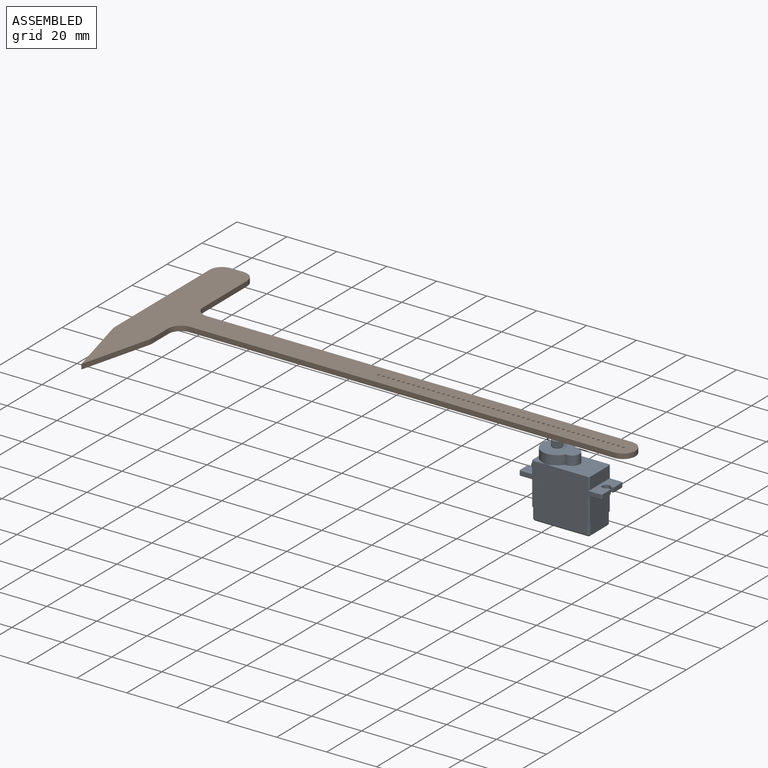
[diagram: assembled view]
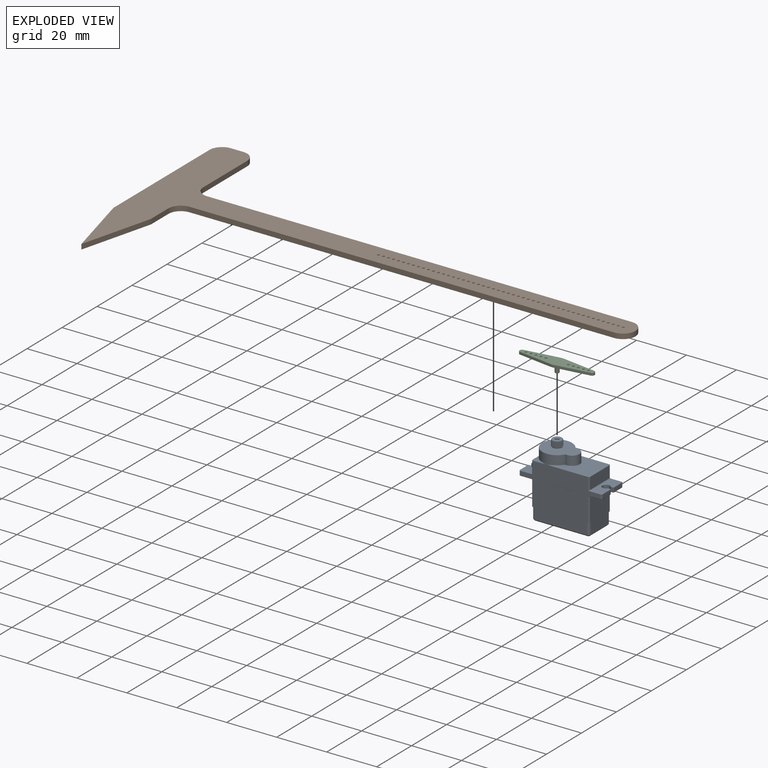
[diagram: exploded view]
GUIDED TOUR — MATED ASSEMBLY (Onshape document 581a83bee5385f105d0a3b72, AutoMate assembly 581a83bee5385f105d0a3b72_4ecf0d9252ac3c27a4bb19f4_70538246d8c54f1da4383d06_default)

This assembly has 3 components, labeled P0..P2 below (a component is one placed occurrence of a part; the same part can appear more than once), held together by 2 mates. A mate is a constraint between two components; its type names the relative motion it leaves free:
  FASTENED — locks the two components together rigidly (no relative motion),
  REVOLUTE — leaves rotation about the listed axis free (a hinge).
Axis/direction vectors are unit vectors and 'through' points are millimeter coordinates, both in the assembly's world frame.

MATES
  1. FASTENED "Fastened 1": P1 <-> P2, direction (0.000, 0.000, -1.000) through (7.87, -13.04, 30.90) mm
  2. REVOLUTE "Revolute 1": P0 <-> P2, axis (0.000, 0.000, 1.000) through (-4.63, -13.04, 26.90) mm

ASSEMBLY ORDER
  1. P0 — the base component [order verified]
  2. P2 [order verified]
  3. P1 [order verified]
Order-tag legend:
  [order verified] — this step's position reverses a verified removal order: the component was checked to insert without passing through the ones already placed.

Of the 3 components, 1 carries the full construction recipe — the FeatureScript program that regenerates the part's solid from scratch; the rest are supplied as boundary geometry only.
Each toured component is shown spotlighted twice — in the assembled view, then in the exploded view, where a leader line traces a displaced component back to its assembled socket (saturated green if recipe-attached, orange if geometry-only; every other component desaturated gray) — followed by its recipe or geometry summary and the mates that hold it.
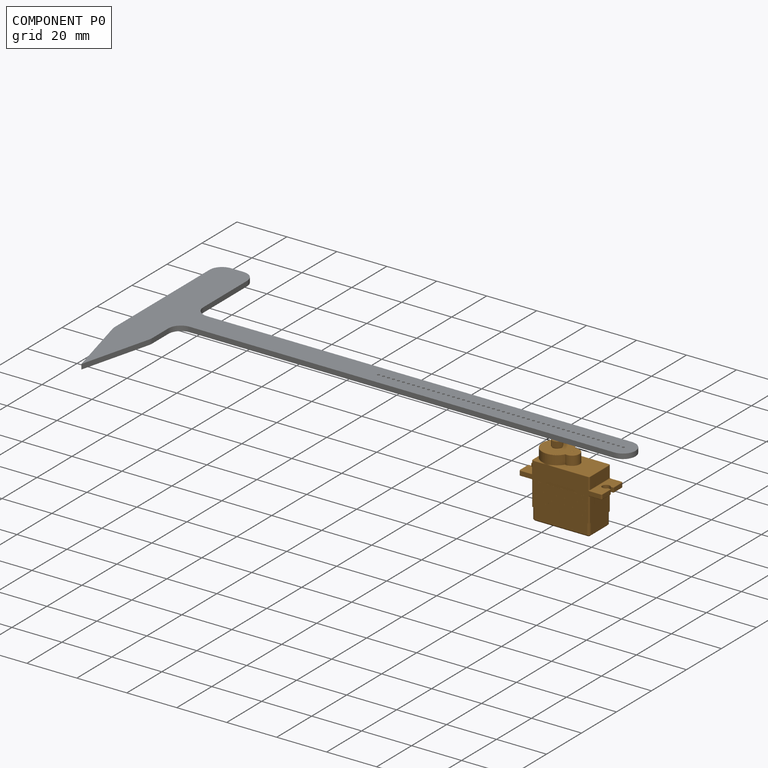
[diagram: component P0 — assembled]
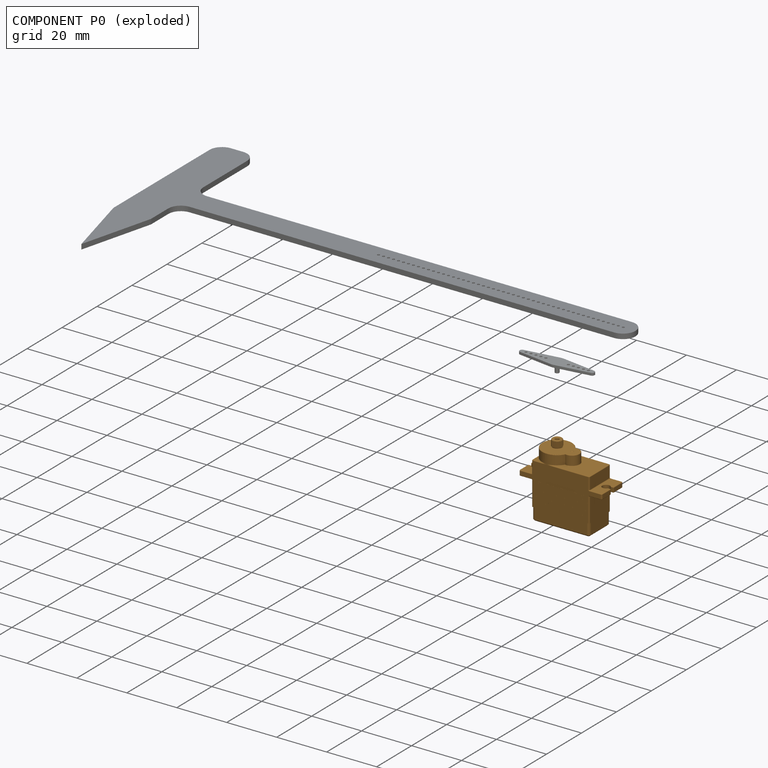
[diagram: component P0 — exploded]
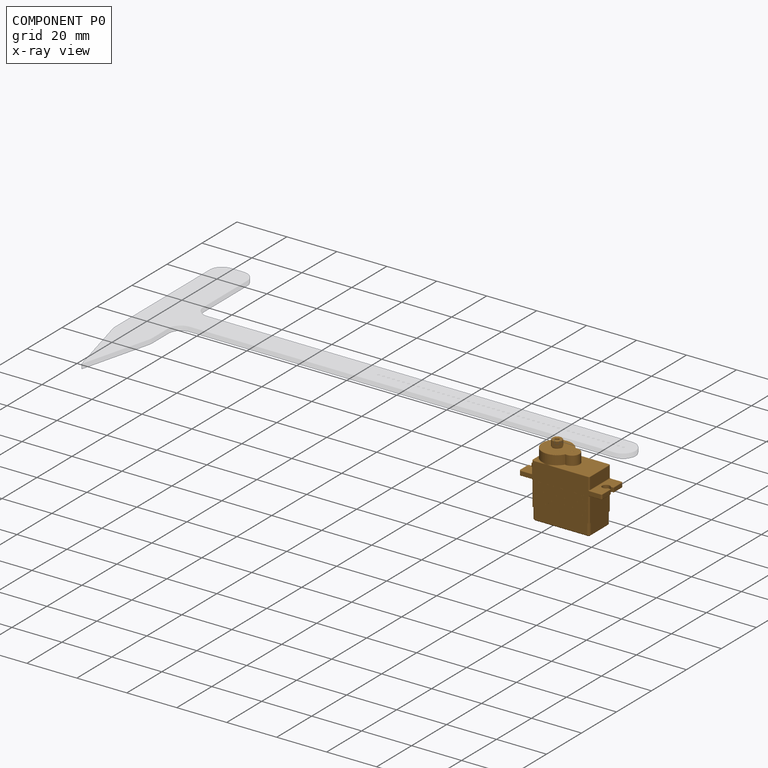
[diagram: component P0 — x-ray view]
COMPONENT P0 — geometry summary (no construction recipe available for this part):
  bounding box: 33.4 x 29.1 x 13.2 mm
  B-rep topology: 1 solid, 894 faces, 4792 edges
  volume: 6771 mm^3 (53% of its bounding box)
  symmetry: mirror-symmetric across its y mid-plane
Held by: REVOLUTE mate "Revolute 1" to P2.
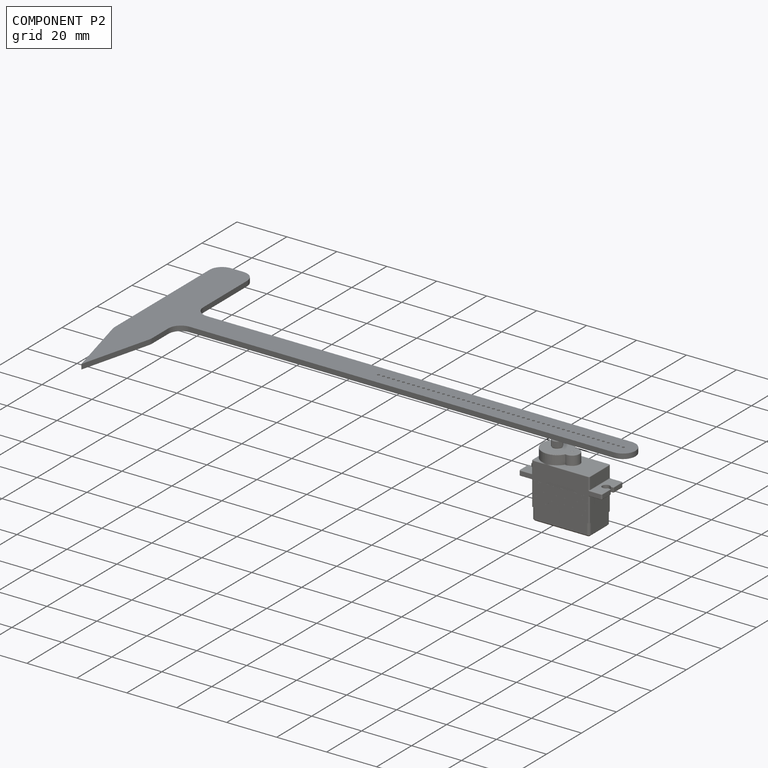
[diagram: component P2 — assembled]
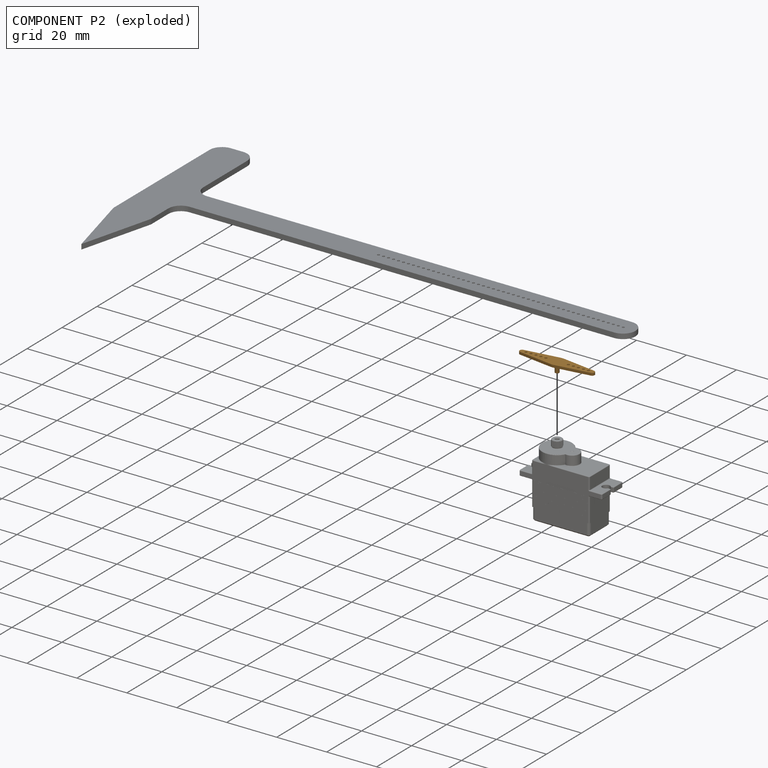
[diagram: component P2 — exploded]
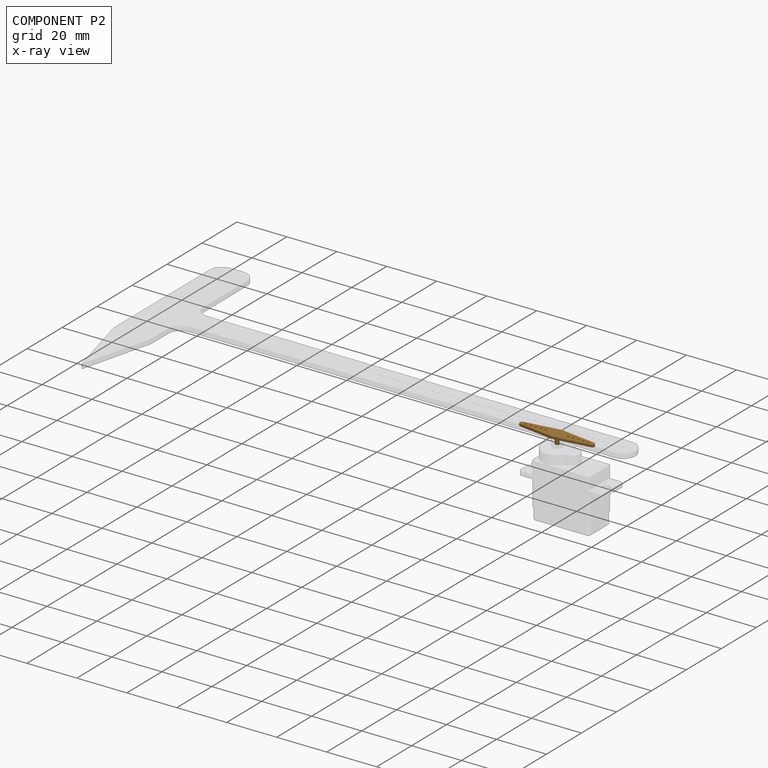
[diagram: component P2 — x-ray view]
COMPONENT P2 — geometry summary (no construction recipe available for this part):
  bounding box: 30.0 x 6.0 x 4.0 mm
  B-rep topology: 1 solid, 22 faces, 114 edges
  volume: 114 mm^3 (16% of its bounding box)
  symmetry: 2-fold rotationally symmetric about the z axis; mirror-symmetric across its x mid-plane, y mid-plane
Held by: FASTENED mate "Fastened 1" to P1; REVOLUTE mate "Revolute 1" to P0.
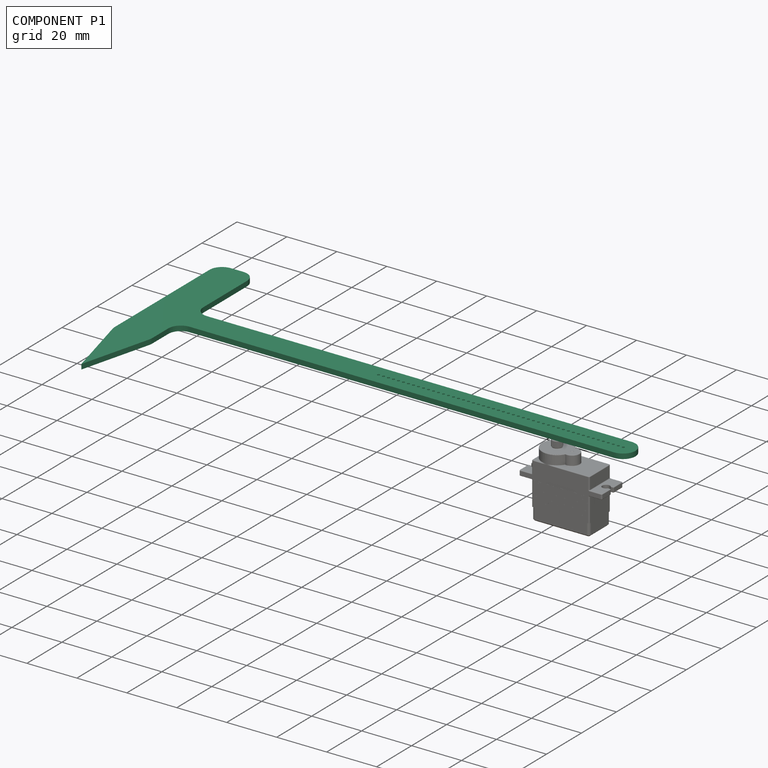
[diagram: component P1 — assembled]
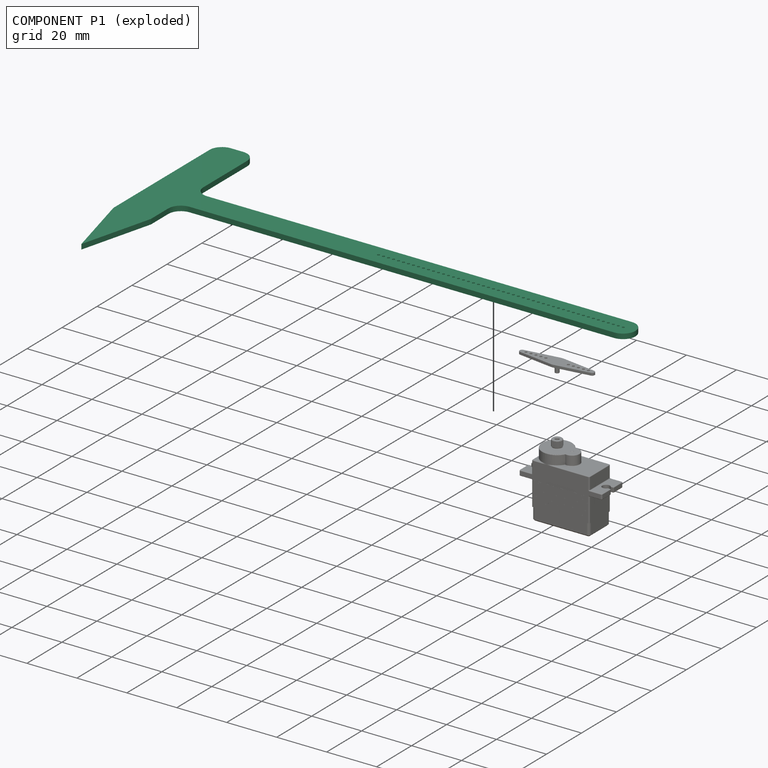
[diagram: component P1 — exploded]
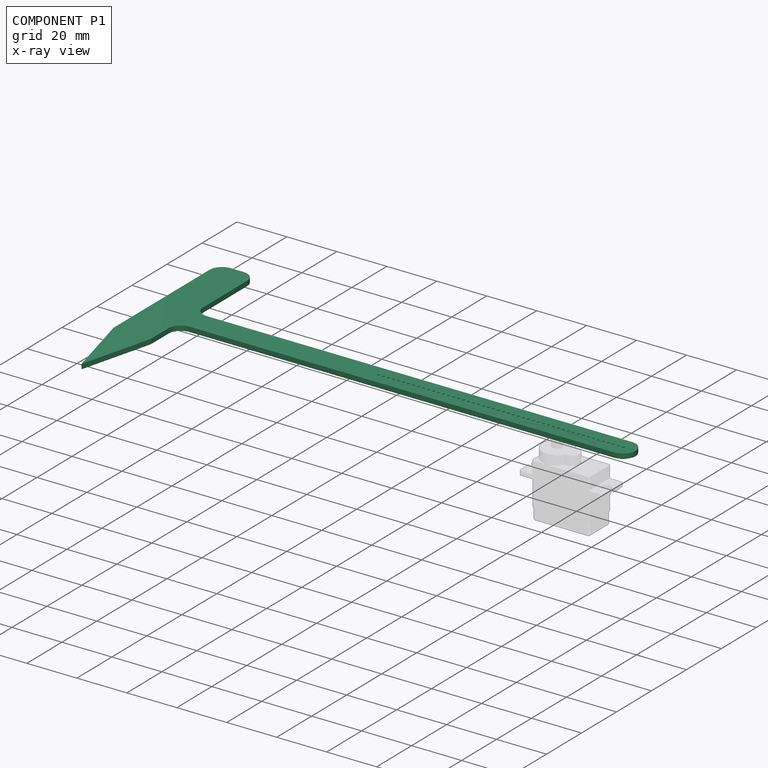
[diagram: component P1 — x-ray view]
COMPONENT P1 — recipe-attached (CADFS 00310060, mesh-verified: the recipe's output STEP matches this component's geometry to below the mesh-comparison resolution (tessellation chordal tolerance ~0.322 mm)).
Held by: FASTENED mate "Fastened 1" to P2.
Construction recipe (FeatureScript — the CAD program that rebuilds this solid; sketch coordinates are in the units given by the * unit suffixes, e.g. mm):

FeatureScript 1540;
import(path : "onshape/std/geometry.fs", version : "1540.0");
import(path : "onshape/std/common.fs", version : "1540.0");
const mm = millimeter;
const VERTEX = EntityType.VERTEX;
const EDGE = EntityType.EDGE;
const FACE = EntityType.FACE;
const BODY = EntityType.BODY;
function v(x, y){return vector(x, y);}
function OD(order){return orderDisambiguation(order);}
function OSD(set){return originalSetDisambiguation(set);}
function TD(topology){return topologyDisambiguation(topology);}
function TDD(query){return trueDependencyDisambiguation(query);}
function sQuery(a, b, c) {return sketchEntityQuery(a, b, c);}

annotation { "Feature Type Name" : "Feature", "Feature Type Description" : "" }
export const myFeature = defineFeature(function(context is Context, id is Id, definition is map)
    precondition{}
    {
        {
            var Q0;
            Q0=qCreatedBy(makeId("Right.planeOp"),FACE);
            var sketch = newSketch(context, id + "F0", { "sketchPlane" : qUnion([Q0])});
            skLineSegment(sketch, "E0.bottom", {"start": v(-101.64, 12.47) * mm, "end": v(78.36, 12.47) * mm});
            skLineSegment(sketch, "E0.top", {"start": v(-101.64, 2.47) * mm, "end": v(78.36, 2.47) * mm});
            skLineSegment(sketch, "E0.left", {"start": v(-101.64, 12.47) * mm, "end": v(-101.64, 2.47) * mm});
            skLineSegment(sketch, "E0.right", {"start": v(78.36, 12.47) * mm, "end": v(78.36, 2.47) * mm});
            skLineSegment(sketch, "E1.bottom", {"start": v(78.36, 47.47) * mm, "end": v(93.36, 47.47) * mm});
            skLineSegment(sketch, "E1.top", {"start": v(78.36, -12.53) * mm, "end": v(93.36, -12.53) * mm});
            skLineSegment(sketch, "E1.left", {"start": v(78.36, 47.47) * mm, "end": v(78.36, -12.53) * mm});
            skLineSegment(sketch, "E1.right", {"start": v(93.36, 47.47) * mm, "end": v(93.36, -12.53) * mm});
            skLineSegment(sketch, "E2", {"start": v(93.36, -12.53) * mm, "end": v(85.86, -41.57) * mm});
            skLineSegment(sketch, "E3", {"start": v(85.86, -41.57) * mm, "end": v(78.36, -12.53) * mm});
            skCircle(sketch, "E4", {"center": v(-96.78, 7.47) * mm, "radius": 0.5 * mm});
            skPoint(sketch, "E4.centerSnap0", {"position": v(-101.64, 7.47) * mm});
            skCircle(sketch, "E5.1.0.0", {"center": v(-94.78, 7.47) * mm, "radius": 0.5 * mm});
            skCircle(sketch, "E5.2.0.0", {"center": v(-92.78, 7.47) * mm, "radius": 0.5 * mm});
            skCircle(sketch, "E5.3.0.0", {"center": v(-90.78, 7.47) * mm, "radius": 0.5 * mm});
            skCircle(sketch, "E5.4.0.0", {"center": v(-88.78, 7.47) * mm, "radius": 0.5 * mm});
            skCircle(sketch, "E5.5.0.0", {"center": v(-86.78, 7.47) * mm, "radius": 0.5 * mm});
            skCircle(sketch, "E5.6.0.0", {"center": v(-84.78, 7.47) * mm, "radius": 0.5 * mm});
            skCircle(sketch, "E5.7.0.0", {"center": v(-82.78, 7.47) * mm, "radius": 0.5 * mm});
            skCircle(sketch, "E5.8.0.0", {"center": v(-80.78, 7.47) * mm, "radius": 0.5 * mm});
            skCircle(sketch, "E5.9.0.0", {"center": v(-78.78, 7.47) * mm, "radius": 0.5 * mm});
            skCircle(sketch, "E5.10.0.0", {"center": v(-76.78, 7.47) * mm, "radius": 0.5 * mm});
            skCircle(sketch, "E5.11.0.0", {"center": v(-74.78, 7.47) * mm, "radius": 0.5 * mm});
            skCircle(sketch, "E5.12.0.0", {"center": v(-72.78, 7.47) * mm, "radius": 0.5 * mm});
            skCircle(sketch, "E5.13.0.0", {"center": v(-70.78, 7.47) * mm, "radius": 0.5 * mm});
            skCircle(sketch, "E5.14.0.0", {"center": v(-68.78, 7.47) * mm, "radius": 0.5 * mm});
            skCircle(sketch, "E5.15.0.0", {"center": v(-66.78, 7.47) * mm, "radius": 0.5 * mm});
            skCircle(sketch, "E5.16.0.0", {"center": v(-64.78, 7.47) * mm, "radius": 0.5 * mm});
            skCircle(sketch, "E5.17.0.0", {"center": v(-62.78, 7.47) * mm, "radius": 0.5 * mm});
            skCircle(sketch, "E5.18.0.0", {"center": v(-60.78, 7.47) * mm, "radius": 0.5 * mm});
            skCircle(sketch, "E5.19.0.0", {"center": v(-58.78, 7.47) * mm, "radius": 0.5 * mm});
            skCircle(sketch, "E5.20.0.0", {"center": v(-56.78, 7.47) * mm, "radius": 0.5 * mm});
            skCircle(sketch, "E5.21.0.0", {"center": v(-54.78, 7.47) * mm, "radius": 0.5 * mm});
            skCircle(sketch, "E5.22.0.0", {"center": v(-52.78, 7.47) * mm, "radius": 0.5 * mm});
            skCircle(sketch, "E5.23.0.0", {"center": v(-50.78, 7.47) * mm, "radius": 0.5 * mm});
            skCircle(sketch, "E5.24.0.0", {"center": v(-48.78, 7.47) * mm, "radius": 0.5 * mm});
            skCircle(sketch, "E5.25.0.0", {"center": v(-46.78, 7.47) * mm, "radius": 0.5 * mm});
            skCircle(sketch, "E5.26.0.0", {"center": v(-44.78, 7.47) * mm, "radius": 0.5 * mm});
            skCircle(sketch, "E5.27.0.0", {"center": v(-42.78, 7.47) * mm, "radius": 0.5 * mm});
            skCircle(sketch, "E5.28.0.0", {"center": v(-40.78, 7.47) * mm, "radius": 0.5 * mm});
            skCircle(sketch, "E5.29.0.0", {"center": v(-38.78, 7.47) * mm, "radius": 0.5 * mm});
            skCircle(sketch, "E5.30.0.0", {"center": v(-36.78, 7.47) * mm, "radius": 0.5 * mm});
            skCircle(sketch, "E5.31.0.0", {"center": v(-34.78, 7.47) * mm, "radius": 0.5 * mm});
            skCircle(sketch, "E5.32.0.0", {"center": v(-32.78, 7.47) * mm, "radius": 0.5 * mm});
            skCircle(sketch, "E5.33.0.0", {"center": v(-30.78, 7.47) * mm, "radius": 0.5 * mm});
            skCircle(sketch, "E5.34.0.0", {"center": v(-28.78, 7.47) * mm, "radius": 0.5 * mm});
            skCircle(sketch, "E5.35.0.0", {"center": v(-26.78, 7.47) * mm, "radius": 0.5 * mm});
            skCircle(sketch, "E5.36.0.0", {"center": v(-24.78, 7.47) * mm, "radius": 0.5 * mm});
            skCircle(sketch, "E5.37.0.0", {"center": v(-22.78, 7.47) * mm, "radius": 0.5 * mm});
            skCircle(sketch, "E5.38.0.0", {"center": v(-20.78, 7.47) * mm, "radius": 0.5 * mm});
            skCircle(sketch, "E5.39.0.0", {"center": v(-18.78, 7.47) * mm, "radius": 0.5 * mm});
            skCircle(sketch, "E5.40.0.0", {"center": v(-16.78, 7.47) * mm, "radius": 0.5 * mm});
            skCircle(sketch, "E5.41.0.0", {"center": v(-14.78, 7.47) * mm, "radius": 0.5 * mm});
            skCircle(sketch, "E5.42.0.0", {"center": v(-12.78, 7.47) * mm, "radius": 0.5 * mm});
            skCircle(sketch, "E5.43.0.0", {"center": v(-10.78, 7.47) * mm, "radius": 0.5 * mm});
            skCircle(sketch, "E5.44.0.0", {"center": v(-8.78, 7.47) * mm, "radius": 0.5 * mm});
            skCircle(sketch, "E5.45.0.0", {"center": v(-6.78, 7.47) * mm, "radius": 0.5 * mm});
            skCircle(sketch, "E5.46.0.0", {"center": v(-4.78, 7.47) * mm, "radius": 0.5 * mm});
            skCircle(sketch, "E5.47.0.0", {"center": v(-2.78, 7.47) * mm, "radius": 0.5 * mm});
            skCircle(sketch, "E5.48.0.0", {"center": v(-0.78, 7.47) * mm, "radius": 0.5 * mm});
            skCircle(sketch, "E5.49.0.0", {"center": v(1.22, 7.47) * mm, "radius": 0.5 * mm});
            skLineSegment(sketch, "E5.direction1", {"start": v(-96.78, 7.47) * mm, "end": v(-94.78, 7.47) * mm, "construction": true});
            skSolve(sketch);
        }
        {
            var Q0;
            {var subQ1=sQuery(id+"F0.wireOp",EDGE,"E0.right");Q0=makeQuery(id+"F0.imprint","IMPRINT",FACE,{"disambiguationData":[TD([[makeQuery(id+"F0.imprint","IMPRINT",EDGE,{"derivedFrom":subQ1}),1.0]])]});}
            var Q1;
            Q1=makeQuery(id+"F0.imprint","IMPRINT",FACE,{"disambiguationData":[TD([[makeQuery(id+"F0.imprint","IMPRINT",EDGE,{"derivedFrom":sQuery(id+"F0.wireOp",EDGE,"E0.bottom")}),-1.0]])]});
            var Q2;
            Q2=makeQuery(id+"F0.imprint","IMPRINT",FACE,{"disambiguationData":[TD([[makeQuery(id+"F0.imprint","IMPRINT",EDGE,{"derivedFrom":sQuery(id+"F0.wireOp",EDGE,"E1.top")}),-1.0]])]});
            extrude(context, id + "F1", {"entities" : qUnion([Q0, Q1, Q2]), "depth" : 2 * mm});
        }
        {
            var Q0;
            Q0=makeQuery(id+"F1.opExtrude","SWEPT_EDGE",EDGE,{"disambiguationData":[OSD([sQuery(id+"F0.wireOp",EDGE,"E1.bottom"),sQuery(id+"F0.wireOp",EDGE,"E1.right")])]});
            var Q1;
            Q1=makeQuery(id+"F1.opExtrude","SWEPT_EDGE",EDGE,{"disambiguationData":[OSD([sQuery(id+"F0.wireOp",EDGE,"E1.bottom"),sQuery(id+"F0.wireOp",EDGE,"E1.left")])]});
            var Q2;
            Q2=makeQuery(id+"F1.opExtrude","SWEPT_EDGE",EDGE,{"disambiguationData":[OSD([sQuery(id+"F0.wireOp",EDGE,"E0.bottom"),sQuery(id+"F0.wireOp",EDGE,"E0.right"),sQuery(id+"F0.wireOp",EDGE,"E1.left")])]});
            var Q3;
            Q3=makeQuery(id+"F1.opExtrude","SWEPT_EDGE",EDGE,{"disambiguationData":[OSD([sQuery(id+"F0.wireOp",EDGE,"E0.top"),sQuery(id+"F0.wireOp",EDGE,"E0.right"),sQuery(id+"F0.wireOp",EDGE,"E1.left")])]});
            var Q4;
            Q4=makeQuery(id+"F1.opExtrude","SWEPT_EDGE",EDGE,{"disambiguationData":[OSD([sQuery(id+"F0.wireOp",EDGE,"E1.top"),sQuery(id+"F0.wireOp",EDGE,"E1.left"),sQuery(id+"F0.wireOp",EDGE,"E3")])]});
            var Q5;
            Q5=makeQuery(id+"F1.opExtrude","SWEPT_EDGE",EDGE,{"disambiguationData":[OSD([sQuery(id+"F0.wireOp",EDGE,"E1.top"),sQuery(id+"F0.wireOp",EDGE,"E1.right"),sQuery(id+"F0.wireOp",EDGE,"E2")])]});
            var Q6;
            Q6=makeQuery(id+"F1.opExtrude","SWEPT_EDGE",EDGE,{"disambiguationData":[OSD([sQuery(id+"F0.wireOp",EDGE,"E0.bottom"),sQuery(id+"F0.wireOp",EDGE,"E0.left")])]});
            var Q7;
            Q7=makeQuery(id+"F1.opExtrude","SWEPT_EDGE",EDGE,{"disambiguationData":[OSD([sQuery(id+"F0.wireOp",EDGE,"E0.top"),sQuery(id+"F0.wireOp",EDGE,"E0.left")])]});
            fillet(context, id + "F2", {"entities" : qUnion([Q0, Q1, Q2, Q3, Q4, Q5, Q6, Q7]), "radius" : 5 * mm, "tangentPropagation" : true, "allowEdgeOverflow" : false});
        }
    });
PROVENANCE & LICENSES
Assembly (occurrences, transforms, mates, per-part STEP geometry): AutoMate dataset, Zenodo record 7776208, CC0.
Construction recipes: CADFS (HuggingFace VladPyatov/CADFS, CC-BY-4.0, layered over the ABC dataset), FeatureScript reconstruction programs keyed by ABC model id.
Join: ABC meta listings map ABC model id -> Onshape documentId; within a shared document, parts are matched by geometric signature (bounding-box dims + volume at 0.1% relative tolerance, exact B-rep face/solid counts).
Verification: 1 of this assembly's 3 components carries a recipe attachment, and every attachment is mesh-verified: the CADFS STEP and the AutoMate member STEP were compared as meshes in their shared local frame (symmetric sampled-point-to-mesh distance); worst across the 1 attachment: below the mesh-comparison resolution (tessellation chordal tolerance ~0.322 mm) on a 214 mm part.
Renders: orthographic iso camera (az 35 / el 25); the floor grid conveys scale (grid pitch printed in each image; no ruler). In the exploded view each component is displaced by its stored offset vector: the offsets alone carry the explosion direction (mate normal/axis signs are not orientation cues and do not encode it), and separation distances are assigned per mate-chain, not proportionally to assembly-order depth.
